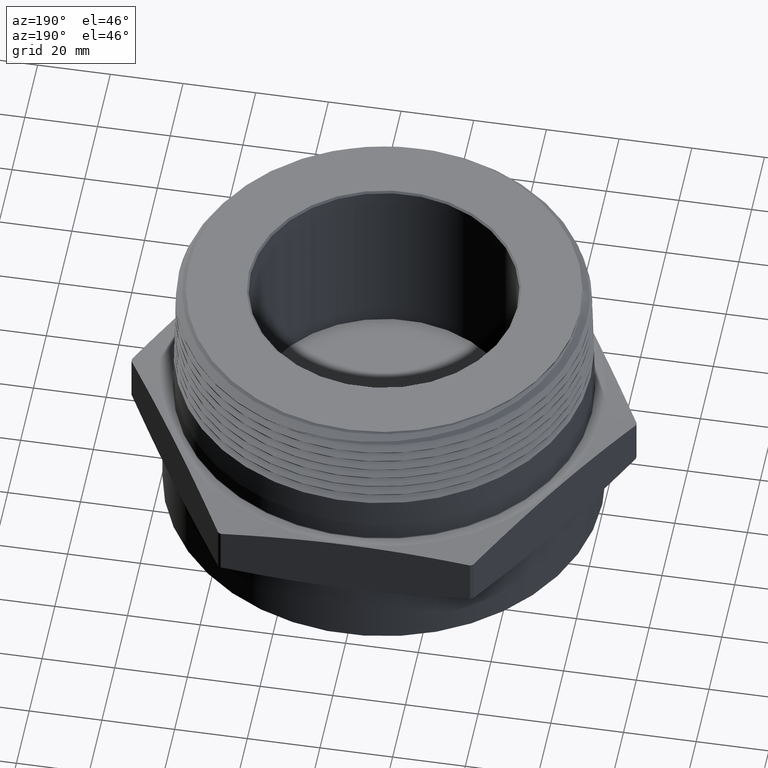
[diagram: clean part render]
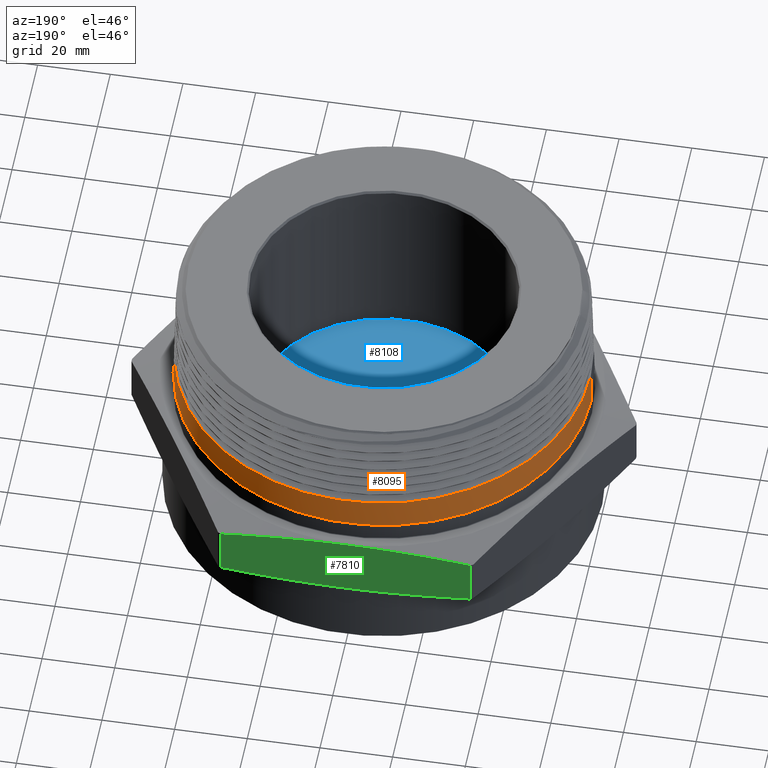
[diagram: same view with three faces highlighted in distinct colors, each labeled with its STEP entity id]
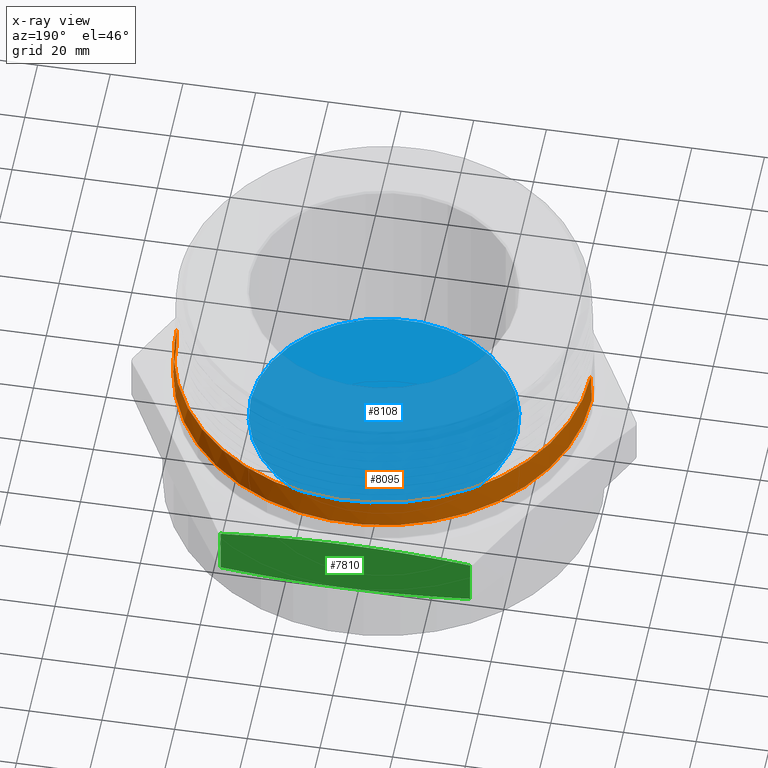
[diagram: x-ray of the same camera — body ghosted, the three highlighted faces saturated]
A machine part, auxiliary view with three faces highlighted in distinct colors.
The next image is the same camera in x-ray (body ghosted, the three faces saturated) — at least one of them is partly hidden behind the body in this view.
Their STEP definitions:

[orange] entity #8095 — the highlighted conical surface has half-angle 1.47 deg.
#370 = AXIS2_PLACEMENT_3D ( 'NONE', #4239, #4240, #4242 ) ;
#687 = AXIS2_PLACEMENT_3D ( 'NONE', #2365, #2366, #2367 ) ;
#1939 = EDGE_LOOP ( 'NONE', ( #2093, #2094, #2095, #2096 ) ) ;
#1961 = VERTEX_POINT ( 'NONE', #2651 ) ;
#1962 = VERTEX_POINT ( 'NONE', #2652 ) ;
#1973 = VERTEX_POINT ( 'NONE', #2663 ) ;
#1974 = VERTEX_POINT ( 'NONE', #2664 ) ;
#2093 = ORIENTED_EDGE ( 'NONE', *, *, #3688, .T. ) ;
#2094 = ORIENTED_EDGE ( 'NONE', *, *, #3689, .T. ) ;
#2095 = ORIENTED_EDGE ( 'NONE', *, *, #3670, .T. ) ;
#2096 = ORIENTED_EDGE ( 'NONE', *, *, #3690, .F. ) ;
#2365 = CARTESIAN_POINT ( 'NONE',  ( 0.0000000000000000000, 0.0000000000000000000, 0.8719703149742851200 ) ) ;
#2366 = DIRECTION ( 'NONE',  ( 0.0000000000000000000, 0.0000000000000000000, 1.000000000000000000 ) ) ;
#2367 = DIRECTION ( 'NONE',  ( -1.000000000000000000, 0.0000000000000000000, 0.0000000000000000000 ) ) ;
#2651 = CARTESIAN_POINT ( 'NONE',  ( 2.250000000000000400, 2.755455298081544800E-016, 0.8719703149742851200 ) ) ;
#2652 = CARTESIAN_POINT ( 'NONE',  ( -2.250000000000000400, 0.0000000000000000000, 0.8719703149742851200 ) ) ;
#2663 = CARTESIAN_POINT ( 'NONE',  ( -2.240740578335900200, 1.293365446968084400E-014, 1.232793016450449900 ) ) ;
#2664 = CARTESIAN_POINT ( 'NONE',  ( 2.242344451516935500, 4.393727928217667500E-015, 1.170293016450447700 ) ) ;
#2921 = CARTESIAN_POINT ( 'NONE',  ( -2.240773904394191000, 0.1462700394002943200, 1.231494361003235600 ) ) ;
#2989 = CARTESIAN_POINT ( 'NONE',  ( -2.240740578335900200, 1.293365446968084400E-014, 1.232793016450449900 ) ) ;
#2993 = CARTESIAN_POINT ( 'NONE',  ( -2.226622474949433900, 0.2916326391404499600, 1.230203813011023600 ) ) ;
#2994 = CARTESIAN_POINT ( 'NONE',  ( -2.190846076883334000, 0.4721785267979138900, 1.228569915647374600 ) ) ;
#2995 = CARTESIAN_POINT ( 'NONE',  ( -2.182753600953688100, 0.5083241506754394600, 1.228239571815040700 ) ) ;
#2996 = CARTESIAN_POINT ( 'NONE',  ( -2.164828331635301900, 0.5800006497334541100, 1.227581068555334100 ) ) ;
#2997 = CARTESIAN_POINT ( 'NONE',  ( -2.155014926752758100, 0.6154779634225697700, 1.227253419460081000 ) ) ;
#2998 = CARTESIAN_POINT ( 'NONE',  ( -2.123071832853832500, 0.7208480751939849700, 1.226275924043619200 ) ) ;
#2999 = CARTESIAN_POINT ( 'NONE',  ( -2.098445154788044900, 0.7896815545803511600, 1.225632726787350800 ) ) ;
#3000 = CARTESIAN_POINT ( 'NONE',  ( -2.042642580285188200, 0.9245698225987980500, 1.224336863184655800 ) ) ;
#3001 = CARTESIAN_POINT ( 'NONE',  ( -2.011466606520756300, 0.9906245777697203500, 1.223684129337094400 ) ) ;
#3002 = CARTESIAN_POINT ( 'NONE',  ( -1.959732368231769600, 1.087598031701853400, 1.222708346204033600 ) ) ;
#3003 = CARTESIAN_POINT ( 'NONE',  ( -1.941657784231599400, 1.119570448207202600, 1.222383332057349800 ) ) ;
#3004 = CARTESIAN_POINT ( 'NONE',  ( -1.903820868728129500, 1.182799215231856500, 1.221731744165392800 ) ) ;
#3005 = CARTESIAN_POINT ( 'NONE',  ( -1.883999967231780000, 1.214139349892749700, 1.221404265366494900 ) ) ;
#3006 = CARTESIAN_POINT ( 'NONE',  ( -1.781533455382311400, 1.367606730935376800, 1.219766173513637600 ) ) ;
#3007 = CARTESIAN_POINT ( 'NONE',  ( -1.688758010808380200, 1.480545113097797300, 1.218474816006817300 ) ) ;
#3008 = CARTESIAN_POINT ( 'NONE',  ( -1.533881427384504900, 1.635645055402627800, 1.216529321587788100 ) ) ;
#3009 = CARTESIAN_POINT ( 'NONE',  ( -1.479618137373591500, 1.684943196093441100, 1.215874207042429300 ) ) ;
#3010 = CARTESIAN_POINT ( 'NONE',  ( -1.394153371304347900, 1.755184713644831100, 1.214892167064504800 ) ) ;
#3011 = CARTESIAN_POINT ( 'NONE',  ( -1.364921944829174300, 1.778022103327737000, 1.214563946407849900 ) ) ;
#3012 = CARTESIAN_POINT ( 'NONE',  ( -1.305705534135006100, 1.821972166871808700, 1.213911902752408800 ) ) ;
#3013 = CARTESIAN_POINT ( 'NONE',  ( -1.275660989345027900, 1.843138622118693800, 1.213587358971236000 ) ) ;
#3014 = CARTESIAN_POINT ( 'NONE',  ( -1.123294978408137400, 1.944998979165833800, 1.211960494228176300 ) ) ;
#3015 = CARTESIAN_POINT ( 'NONE',  ( -0.9946042052067846100, 2.013889811335563400, 1.210670880948098800 ) ) ;
#3016 = CARTESIAN_POINT ( 'NONE',  ( -0.8252268637152417900, 2.084225534463279000, 1.209043225240528100 ) ) ;
#3017 = CARTESIAN_POINT ( 'NONE',  ( -0.7909219153690790800, 2.097496740657227600, 1.208715262299610500 ) ) ;
#3018 = CARTESIAN_POINT ( 'NONE',  ( -0.7214367872997640200, 2.122417179464634300, 1.208057480222049200 ) ) ;
#3019 = CARTESIAN_POINT ( 'NONE',  ( -0.6862350548533444600, 2.134066536854794600, 1.207727491218303100 ) ) ;
#3020 = CARTESIAN_POINT ( 'NONE',  ( -0.5804876818477197100, 2.166189487694755400, 1.206746524753460300 ) ) ;
#3021 = CARTESIAN_POINT ( 'NONE',  ( -0.5094155733612891800, 2.183991557687492400, 1.206102057962297000 ) ) ;
#3022 = CARTESIAN_POINT ( 'NONE',  ( -0.2945225170748410600, 2.226838233496288400, 1.204157281745323200 ) ) ;
#3023 = CARTESIAN_POINT ( 'NONE',  ( -0.1490408147670030400, 2.241425052221597700, 1.202865644201643700 ) ) ;
#3024 = CARTESIAN_POINT ( 'NONE',  ( 0.03568334930019899400, 2.241571077775943400, 1.201226353748550100 ) ) ;
#3025 = CARTESIAN_POINT ( 'NONE',  ( 0.07270840729095844100, 2.240681958012892000, 1.200896151724641900 ) ) ;
#3026 = CARTESIAN_POINT ( 'NONE',  ( 0.1462388950318381800, 2.237103438980245800, 1.200240226193508100 ) ) ;
#3027 = CARTESIAN_POINT ( 'NONE',  ( 0.1828406427137936300, 2.234414979659700200, 1.199913645001289900 ) ) ;
#3028 = CARTESIAN_POINT ( 'NONE',  ( 0.2921630811178459500, 2.223694225360496100, 1.198938725925942700 ) ) ;
#3029 = CARTESIAN_POINT ( 'NONE',  ( 0.3644021075398207200, 2.213012765037475600, 1.198296419969759700 ) ) ;
#3030 = CARTESIAN_POINT ( 'NONE',  ( 0.5076073328009641500, 2.184650597259175000, 1.197000963082379200 ) ) ;
#3031 = CARTESIAN_POINT ( 'NONE',  ( 0.5785735600365866600, 2.166970057826671500, 1.196347574295434800 ) ) ;
#3032 = CARTESIAN_POINT ( 'NONE',  ( 0.6840500373161392300, 2.135098976909154600, 1.195369615998254100 ) ) ;
#3033 = CARTESIAN_POINT ( 'NONE',  ( 0.7190464287839319900, 2.123581989684264900, 1.195043679222539200 ) ) ;
#3034 = CARTESIAN_POINT ( 'NONE',  ( 0.7887075786606460000, 2.098724330718615900, 1.194389834356766000 ) ) ;
#3035 = CARTESIAN_POINT ( 'NONE',  ( 0.8232029543584543600, 2.085440719797408500, 1.194063493974638800 ) ) ;
#3036 = CARTESIAN_POINT ( 'NONE',  ( 0.9931417561253723700, 2.015161125053956900, 1.192431604558161100 ) ) ;
#3037 = CARTESIAN_POINT ( 'NONE',  ( 1.121944577750799900, 1.946371874134957600, 1.191141665448824700 ) ) ;
#3038 = CARTESIAN_POINT ( 'NONE',  ( 1.304597271596138900, 1.824640503560803800, 1.189194180339522300 ) ) ;
#3039 = CARTESIAN_POINT ( 'NONE',  ( 1.363717726135157200, 1.780944593571850600, 1.188537431002856900 ) ) ;
#3040 = CARTESIAN_POINT ( 'NONE',  ( 1.478259516740978700, 1.687124676124159000, 1.187223455638513700 ) ) ;
#3041 = CARTESIAN_POINT ( 'NONE',  ( 1.532732091492496000, 1.637778958931127100, 1.186577082254124600 ) ) ;
#3042 = CARTESIAN_POINT ( 'NONE',  ( 1.688046996617391000, 1.482689285194078300, 1.184629600250462800 ) ) ;
#3043 = CARTESIAN_POINT ( 'NONE',  ( 1.780861954653297800, 1.369958243982697800, 1.183339657334937500 ) ) ;
#3044 = CARTESIAN_POINT ( 'NONE',  ( 1.883248069033028400, 1.217178990436990300, 1.181708113694036400 ) ) ;
#3045 = CARTESIAN_POINT ( 'NONE',  ( 1.903071272665629800, 1.185967951555632500, 1.181378552751704700 ) ) ;
#3046 = CARTESIAN_POINT ( 'NONE',  ( 1.941159403106715000, 1.122575712850784100, 1.180719760617154900 ) ) ;
#3047 = CARTESIAN_POINT ( 'NONE',  ( 1.959342838113071500, 1.090536971044520300, 1.180392000318100800 ) ) ;
#3048 = CARTESIAN_POINT ( 'NONE',  ( 2.011363553790738400, 0.9934136921501768300, 1.179414319605928100 ) ) ;
#3049 = CARTESIAN_POINT ( 'NONE',  ( 2.042677214957402000, 0.9273244666584353800, 1.178771192970779600 ) ) ;
#3050 = CARTESIAN_POINT ( 'NONE',  ( 2.098696925773813100, 0.7925156878276301600, 1.177476125374049600 ) ) ;
#3051 = CARTESIAN_POINT ( 'NONE',  ( 2.123402846137336700, 0.7237960862903553000, 1.176823843622328800 ) ) ;
#3052 = CARTESIAN_POINT ( 'NONE',  ( 2.155456044614608900, 0.6187239463483883400, 1.175849017502443400 ) ) ;
#3053 = CARTESIAN_POINT ( 'NONE',  ( 2.165304695707968500, 0.5833671952705215000, 1.175524370070601700 ) ) ;
#3054 = CARTESIAN_POINT ( 'NONE',  ( 2.183303793948457600, 0.5119776716629195200, 1.174873661804630500 ) ) ;
#3055 = CARTESIAN_POINT ( 'NONE',  ( 2.191469127339034100, 0.4758666073976570200, 1.174546898632669300 ) ) ;
#3056 = CARTESIAN_POINT ( 'NONE',  ( 2.227753349150717100, 0.2946062056432868800, 1.172907092813644200 ) ) ;
#3057 = CARTESIAN_POINT ( 'NONE',  ( 2.242310739522636700, 0.1480698459671261300, 1.171606711116946600 ) ) ;
#3058 = CARTESIAN_POINT ( 'NONE',  ( 2.242344451516935500, 4.393727928217667500E-015, 1.170293016450447700 ) ) ;
#3059 = CARTESIAN_POINT ( 'NONE',  ( 2.254432846818602800, 2.760883969749057400E-016, 0.6992303942382361900 ) ) ;
#3060 = DIRECTION ( 'NONE',  ( 0.02565352539212729200, 3.141650775831403800E-018, -0.9996708941621514900 ) ) ;
#3061 = CARTESIAN_POINT ( 'NONE',  ( -2.254432846818602800, 0.0000000000000000000, 0.6992303942382361900 ) ) ;
#3063 = DIRECTION ( 'NONE',  ( -0.02565352539212729200, 0.0000000000000000000, -0.9996708941621514900 ) ) ;
#3296 = CIRCLE ( 'NONE', #687, 2.250000000000000400 ) ;
#3322 = LINE ( 'NONE', #3061, #3341 ) ;
#3335 = LINE ( 'NONE', #3059, #3337 ) ;
#3337 = VECTOR ( 'NONE', #3060, 39.37007874015748100 ) ;
#3341 = VECTOR ( 'NONE', #3063, 39.37007874015748100 ) ;
#3515 = FACE_OUTER_BOUND ( 'NONE', #1939, .T. ) ;
#3534 = CONICAL_SURFACE ( 'NONE', #370, 2.254432846818602800, 0.02565634000430888300 ) ;
#3670 = EDGE_CURVE ( 'NONE', #1961, #1962, #3296, .T. ) ;
#3688 = EDGE_CURVE ( 'NONE', #1973, #1974, #7740, .T. ) ;
#3689 = EDGE_CURVE ( 'NONE', #1974, #1961, #3335, .T. ) ;
#3690 = EDGE_CURVE ( 'NONE', #1973, #1962, #3322, .T. ) ;
#4239 = CARTESIAN_POINT ( 'NONE',  ( 0.0000000000000000000, 0.0000000000000000000, 0.6992303942382361900 ) ) ;
#4240 = DIRECTION ( 'NONE',  ( -0.0000000000000000000, -0.0000000000000000000, -1.000000000000000000 ) ) ;
#4242 = DIRECTION ( 'NONE',  ( -1.000000000000000000, 0.0000000000000000000, 0.0000000000000000000 ) ) ;
#7740 = B_SPLINE_CURVE_WITH_KNOTS ( 'NONE', 3,
 ( #2989, #2921, #2993, #2994, #2995, #2996, #2997, #2998, #2999, #3000, #3001, #3002, #3003, #3004, #3005, #3006, #3007, #3008, #3009, #3010, #3011, #3012, #3013, #3014, #3015, #3016, #3017, #3018, #3019, #3020, #3021, #3022, #3023, #3024, #3025, #3026, #3027, #3028, #3029, #3030, #3031, #3032, #3033, #3034, #3035, #3036, #3037, #3038, #3039, #3040, #3041, #3042, #3043, #3044, #3045, #3046, #3047, #3048, #3049, #3050, #3051, #3052, #3053, #3054, #3055, #3056, #3057, #3058 ),
 .UNSPECIFIED., .F., .F.,
 ( 4, 2, 2, 2, 2, 2, 2, 2, 2, 2, 2, 2, 2, 2, 2, 2, 2, 2, 2, 2, 2, 2, 2, 2, 2, 2, 2, 2, 2, 2, 2, 2, 2, 4 ),
 ( 2.397083119813744100, 2.408352212211599200, 2.411169485311062600, 2.413986758410526300, 2.419621304609453900, 2.425255850808381500, 2.428073123907845200, 2.430890397007309000, 2.442159489405163700, 2.447794035604091300, 2.450611308703555000, 2.453428581803018800, 2.464697674200873900, 2.467514947300337700, 2.470332220399801500, 2.475966766598729100, 2.487235858996584200, 2.490053132096047900, 2.492870405195511700, 2.498504951394438800, 2.504139497593366400, 2.506956770692830200, 2.509774043792294000, 2.521043136190149100, 2.526677682389076600, 2.532312228588004200, 2.543581320985859300, 2.546398594085323100, 2.549215867184786900, 2.554850413383714400, 2.560484959582642000, 2.563302232682105800, 2.566119505781569600, 2.577388598179424700 ),
 .UNSPECIFIED. ) ;
#8095 = ADVANCED_FACE ( 'NONE', ( #3515 ), #3534, .T. ) ;

[blue] entity #8108 — the highlighted planar face has unit normal (0, 0, 1).
#380 = AXIS2_PLACEMENT_3D ( 'NONE', #7617, #7621, #7622 ) ;
#622 = EDGE_CURVE ( 'NONE', #2009, #2012, #8019, .T. ) ;
#625 = EDGE_CURVE ( 'NONE', #2012, #2009, #8023, .T. ) ;
#651 = AXIS2_PLACEMENT_3D ( 'NONE', #3599, #3601, #2604 ) ;
#653 = AXIS2_PLACEMENT_3D ( 'NONE', #2608, #2609, #2610 ) ;
#2009 = VERTEX_POINT ( 'NONE', #2699 ) ;
#2012 = VERTEX_POINT ( 'NONE', #2702 ) ;
#2055 = ORIENTED_EDGE ( 'NONE', *, *, #625, .T. ) ;
#2056 = ORIENTED_EDGE ( 'NONE', *, *, #622, .T. ) ;
#2604 = DIRECTION ( 'NONE',  ( 1.000000000000000000, 0.0000000000000000000, 0.0000000000000000000 ) ) ;
#2608 = CARTESIAN_POINT ( 'NONE',  ( 0.0000000000000000000, 0.0000000000000000000, 0.9599999999999999600 ) ) ;
#2609 = DIRECTION ( 'NONE',  ( 0.0000000000000000000, 0.0000000000000000000, 1.000000000000000000 ) ) ;
#2610 = DIRECTION ( 'NONE',  ( 1.000000000000000000, 0.0000000000000000000, 0.0000000000000000000 ) ) ;
#2699 = CARTESIAN_POINT ( 'NONE',  ( 1.444999999999999800, 1.769614624767924500E-016, 0.9599999999999999600 ) ) ;
#2702 = CARTESIAN_POINT ( 'NONE',  ( -1.444999999999999800, 0.0000000000000000000, 0.9599999999999999600 ) ) ;
#3561 = FACE_OUTER_BOUND ( 'NONE', #7836, .T. ) ;
#3599 = CARTESIAN_POINT ( 'NONE',  ( 0.0000000000000000000, 0.0000000000000000000, 0.9599999999999999600 ) ) ;
#3601 = DIRECTION ( 'NONE',  ( 0.0000000000000000000, 0.0000000000000000000, 1.000000000000000000 ) ) ;
#7617 = CARTESIAN_POINT ( 'NONE',  ( 0.0000000000000000000, 0.0000000000000000000, 0.9599999999999999600 ) ) ;
#7619 = PLANE ( 'NONE',  #380 ) ;
#7621 = DIRECTION ( 'NONE',  ( 0.0000000000000000000, 0.0000000000000000000, 1.000000000000000000 ) ) ;
#7622 = DIRECTION ( 'NONE',  ( 1.000000000000000000, 0.0000000000000000000, -0.0000000000000000000 ) ) ;
#7836 = EDGE_LOOP ( 'NONE', ( #2055, #2056 ) ) ;
#8019 = CIRCLE ( 'NONE', #651, 1.444999999999999800 ) ;
#8023 = CIRCLE ( 'NONE', #653, 1.444999999999999800 ) ;
#8108 = ADVANCED_FACE ( 'NONE', ( #3561 ), #7619, .T. ) ;

[green] entity #7810 — the highlighted planar face has unit normal (0, -1, 0).
#13 = B_SPLINE_CURVE_WITH_KNOTS ( 'NONE', 3,
 ( #2538, #2539, #2544, #2545, #2546, #2547, #2548, #2549, #2550, #2551 ),
 .UNSPECIFIED., .F., .F.,
 ( 4, 2, 2, 2, 4 ),
 ( 0.1321518283053316800, 0.1493624693089034800, 0.1665731103124752900, 0.1837837513160470700, 0.2009943923196188800 ),
 .UNSPECIFIED. ) ;
#358 = AXIS2_PLACEMENT_3D ( 'NONE', #4194, #4199, #4200 ) ;
#599 = EDGE_CURVE ( 'NONE', #1951, #2019, #7997, .T. ) ;
#602 = EDGE_CURVE ( 'NONE', #1946, #1949, #8002, .T. ) ;
#1899 = ORIENTED_EDGE ( 'NONE', *, *, #3651, .T. ) ;
#1900 = ORIENTED_EDGE ( 'NONE', *, *, #602, .T. ) ;
#1901 = ORIENTED_EDGE ( 'NONE', *, *, #3661, .T. ) ;
#1902 = ORIENTED_EDGE ( 'NONE', *, *, #599, .T. ) ;
#1946 = VERTEX_POINT ( 'NONE', #2635 ) ;
#1949 = VERTEX_POINT ( 'NONE', #2639 ) ;
#1951 = VERTEX_POINT ( 'NONE', #2641 ) ;
#2019 = VERTEX_POINT ( 'NONE', #2709 ) ;
#2151 = EDGE_LOOP ( 'NONE', ( #1899, #1900, #1901, #1902 ) ) ;
#2538 = CARTESIAN_POINT ( 'NONE',  ( 1.351095872897374100, 2.375000000000000000, 0.07809620950018535100 ) ) ;
#2539 = CARTESIAN_POINT ( 'NONE',  ( 1.126396036090906200, 2.375000000000000000, 0.05447963124755272200 ) ) ;
#2544 = CARTESIAN_POINT ( 'NONE',  ( 0.9015963571545627700, 2.375000000000000400, 0.03531557287650240200 ) ) ;
#2545 = CARTESIAN_POINT ( 'NONE',  ( 0.4517250701887828800, 2.375000000000000000, 0.009114297728386344700 ) ) ;
#2546 = CARTESIAN_POINT ( 'NONE',  ( 0.2266517297341722200, 2.375000000000000400, 0.002154339494769591500 ) ) ;
#2547 = CARTESIAN_POINT ( 'NONE',  ( -0.2238058013334094400, 2.375000000000000000, 0.002096972955577623900 ) ) ;
#2548 = CARTESIAN_POINT ( 'NONE',  ( -0.4491900416486208600, 2.375000000000000400, 0.009001781151312095200 ) ) ;
#2549 = CARTESIAN_POINT ( 'NONE',  ( -0.9002363555214367700, 2.375000000000000900, 0.03520153822878755600 ) ) ;
#2550 = CARTESIAN_POINT ( 'NONE',  ( -1.126096373971885200, 2.375000000000000400, 0.05444813592479810100 ) ) ;
#2551 = CARTESIAN_POINT ( 'NONE',  ( -1.351095872897374100, 2.375000000000000000, 0.07809620950018518500 ) ) ;
#2586 = CARTESIAN_POINT ( 'NONE',  ( -1.126096373971886100, 2.375000000000000000, 0.6155518640752015700 ) ) ;
#2587 = CARTESIAN_POINT ( 'NONE',  ( -1.351095872897374100, 2.375000000000000000, 0.5919037904998145600 ) ) ;
#2591 = CARTESIAN_POINT ( 'NONE',  ( -0.9002363555214367700, 2.375000000000000400, 0.6347984617712124600 ) ) ;
#2592 = CARTESIAN_POINT ( 'NONE',  ( -0.4491900416486210300, 2.375000000000000000, 0.6609982188486874800 ) ) ;
#2593 = CARTESIAN_POINT ( 'NONE',  ( -0.2238058013334095800, 2.375000000000000400, 0.6679030270444218400 ) ) ;
#2594 = CARTESIAN_POINT ( 'NONE',  ( 0.2266517297341718900, 2.375000000000000000, 0.6678456605052297500 ) ) ;
#2595 = CARTESIAN_POINT ( 'NONE',  ( 0.4517250701887822700, 2.375000000000000400, 0.6608857022716130300 ) ) ;
#2596 = CARTESIAN_POINT ( 'NONE',  ( 0.9015963571545619900, 2.375000000000000900, 0.6346844271234971500 ) ) ;
#2597 = CARTESIAN_POINT ( 'NONE',  ( 1.126396036090904700, 2.375000000000000400, 0.6155203687524465300 ) ) ;
#2598 = CARTESIAN_POINT ( 'NONE',  ( 1.351095872897374100, 2.375000000000000000, 0.5919037904998143400 ) ) ;
#2635 = CARTESIAN_POINT ( 'NONE',  ( -1.351095872897374100, 2.375000000000000000, 0.07809620950018518500 ) ) ;
#2639 = CARTESIAN_POINT ( 'NONE',  ( -1.351095872897374100, 2.375000000000000000, 0.5919037904998145600 ) ) ;
#2641 = CARTESIAN_POINT ( 'NONE',  ( 1.351095872897374100, 2.375000000000000000, 0.5919037904998143400 ) ) ;
#2709 = CARTESIAN_POINT ( 'NONE',  ( 1.351095872897374100, 2.375000000000000000, 0.07809620950018535100 ) ) ;
#3448 = FACE_OUTER_BOUND ( 'NONE', #2151, .T. ) ;
#3651 = EDGE_CURVE ( 'NONE', #2019, #1946, #13, .T. ) ;
#3661 = EDGE_CURVE ( 'NONE', #1949, #1951, #7737, .T. ) ;
#4192 = PLANE ( 'NONE',  #358 ) ;
#4194 = CARTESIAN_POINT ( 'NONE',  ( 1.371206889325361100, 2.375000000000000000, 0.6700000000000000400 ) ) ;
#4199 = DIRECTION ( 'NONE',  ( 0.0000000000000000000, -1.000000000000000000, 0.0000000000000000000 ) ) ;
#4200 = DIRECTION ( 'NONE',  ( 0.0000000000000000000, -0.0000000000000000000, -1.000000000000000000 ) ) ;
#7737 = B_SPLINE_CURVE_WITH_KNOTS ( 'NONE', 3,
 ( #2587, #2586, #2591, #2592, #2593, #2594, #2595, #2596, #2597, #2598 ),
 .UNSPECIFIED., .F., .F.,
 ( 4, 2, 2, 2, 4 ),
 ( 0.05832531411798176600, 0.07555280815727798100, 0.09278030219657421000, 0.1100077962358704300, 0.1272352902751666400 ),
 .UNSPECIFIED. ) ;
#7753 = DIRECTION ( 'NONE',  ( -1.224646799147351200E-016, -0.0000000000000000000, -1.000000000000000000 ) ) ;
#7768 = CARTESIAN_POINT ( 'NONE',  ( -1.351095872897374100, 2.375000000000000000, 1.654615236084965500E-016 ) ) ;
#7769 = DIRECTION ( 'NONE',  ( 1.224646799147351200E-016, 0.0000000000000000000, 1.000000000000000000 ) ) ;
#7810 = ADVANCED_FACE ( 'NONE', ( #3448 ), #4192, .F. ) ;
#7997 = LINE ( 'NONE', #8089, #7999 ) ;
#7999 = VECTOR ( 'NONE', #7753, 39.37007874015748100 ) ;
#8002 = LINE ( 'NONE', #7768, #8005 ) ;
#8005 = VECTOR ( 'NONE', #7769, 39.37007874015748100 ) ;
#8089 = CARTESIAN_POINT ( 'NONE',  ( 1.351095872897374100, 2.375000000000000000, -1.654615236084965500E-016 ) ) ;